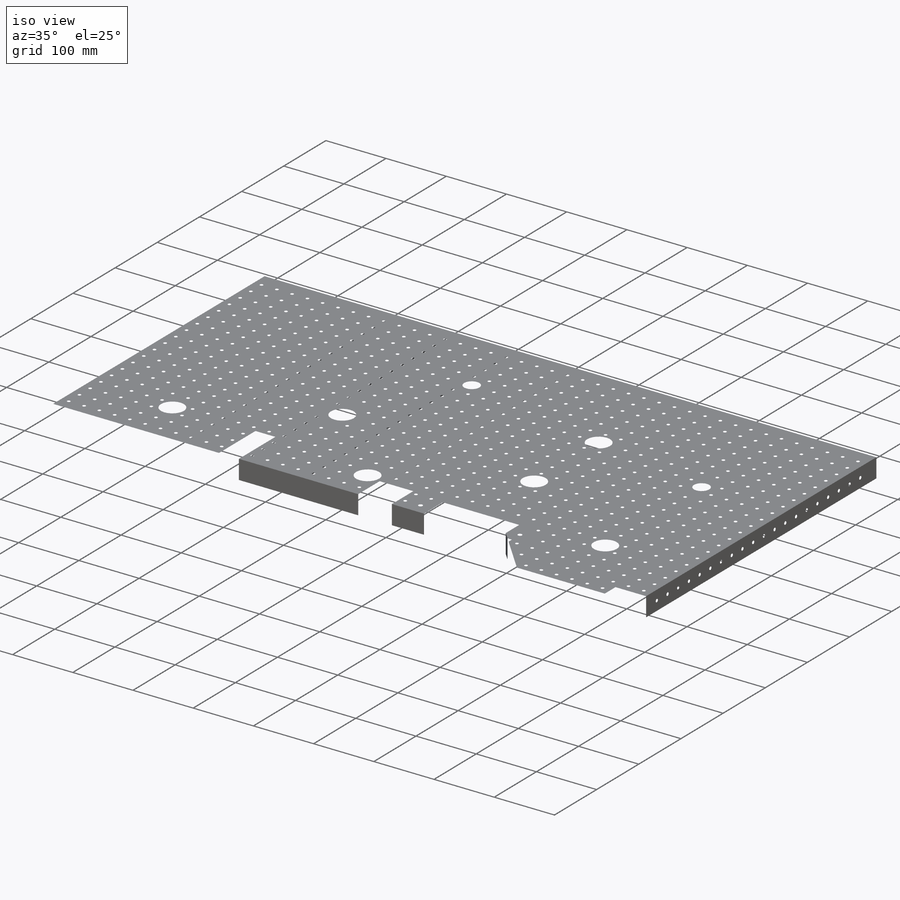
[diagram: iso view]
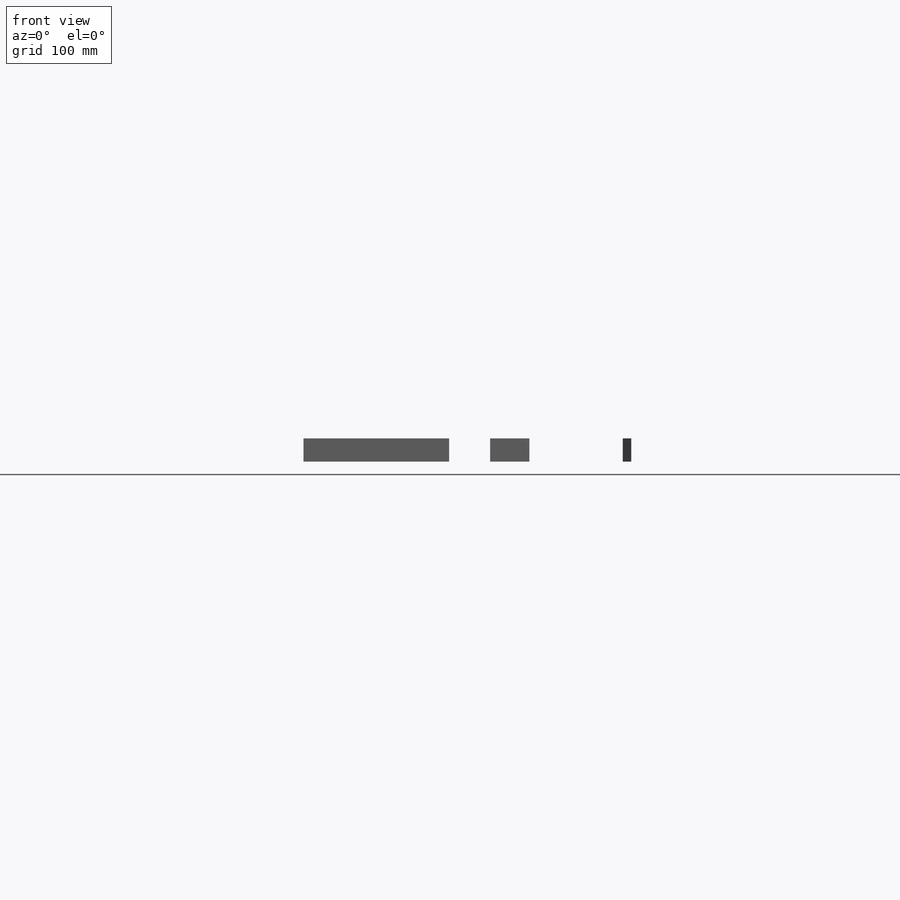
[diagram: front view]
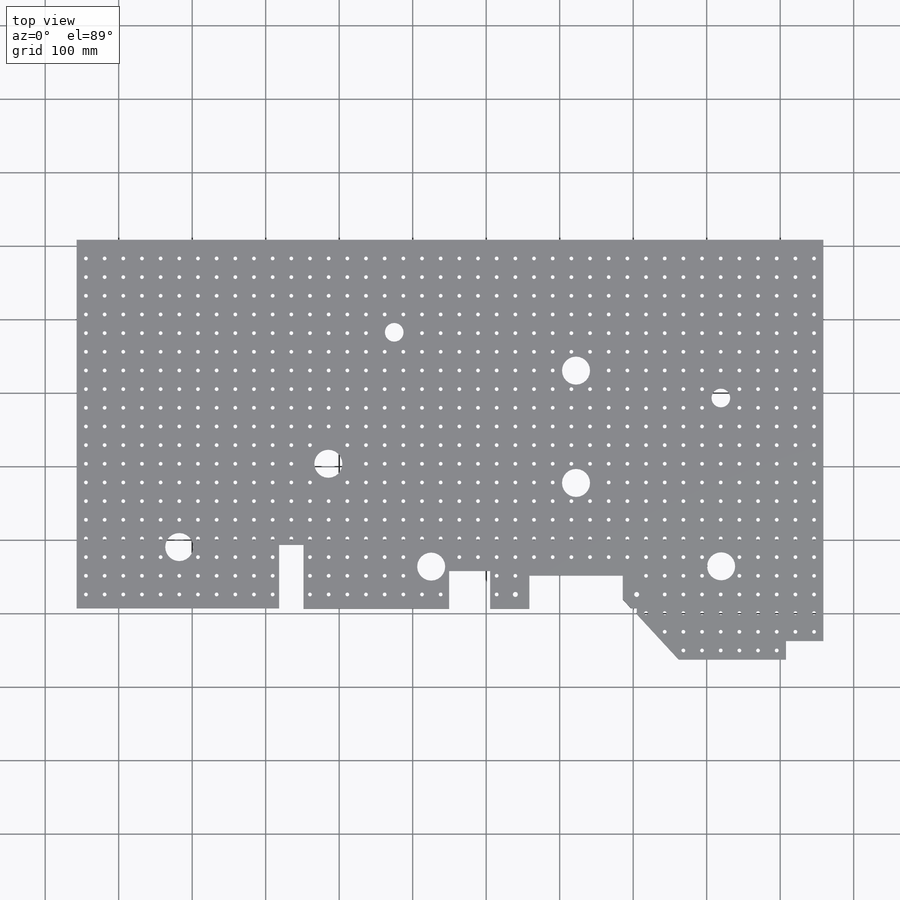
[diagram: top view]
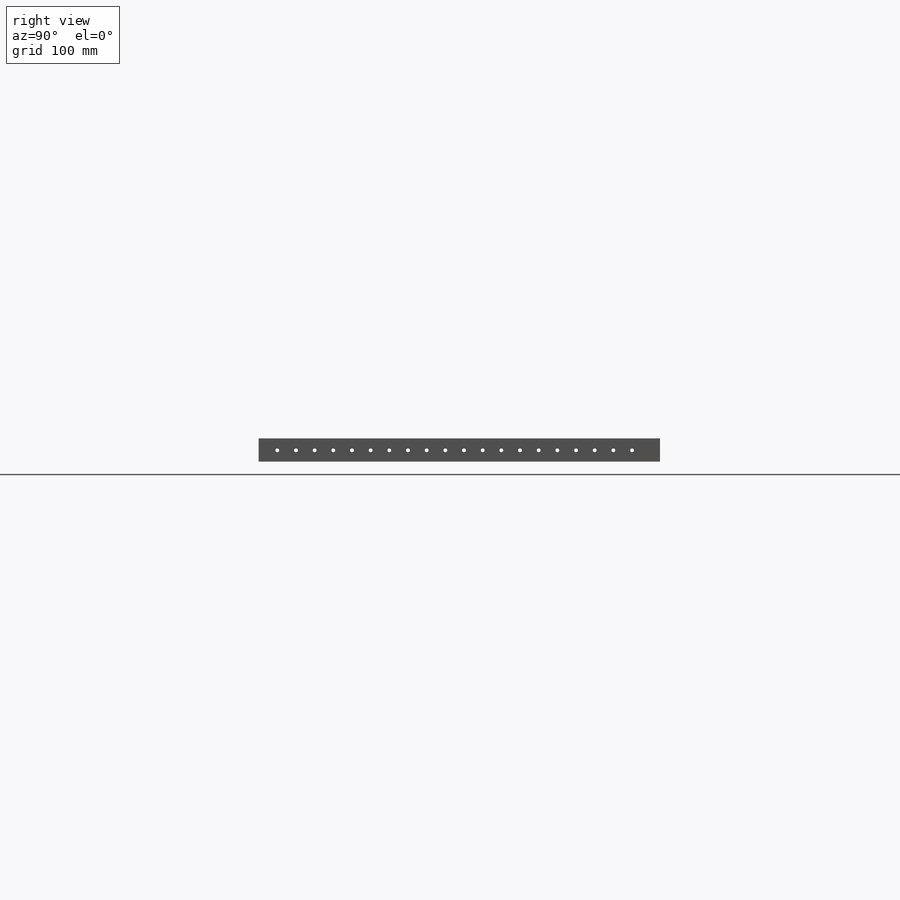
[diagram: right view]
SOLIDWORKS PART (.sldprt)
format: sldprt  version: not decoded by parser v0  size: 2,748,928 bytes
history: native  units: mm
features: sketch x27, cut_extrude x9, hole x6, extrude x4, thread x4, pattern_linear x4, material x1 (+11 scaffold rows collapsed)
feature tree (66):
  scaffold x11  (default folders/planes/origin — collapsed)
  material  "Material <not specified>"
  sketch  "Sketch1"  dims[D1=508.0mm]
  extrude  "Boss-Extrude1"  Depth=31.75mm
  sketch  "Sketch2"  dims[D1=273.05mm D2=158.75mm]
  cut_extrude  "Cut-Extrude1"  Depth=50.8mm
  sketch  "Sketch3"  dims[D1=215.9mm]
  extrude  "Boss-Extrude2"  Depth=63.5mm
  sketch  "Sketch4"
  cut_extrude  "Cut-Extrude2"  Depth=6.35mm
  sketch  "Sketch6"
  extrude  "Boss-Extrude3"  Depth=457.2mm
  hole  "1/4-20 Tapped Hole1"  Diameter=5.1054mm Depth=31.75mm
  sketch  "Sketch11"  dims[D1=12.7mm]
  sketch  "Sketch10"  dims[hole-wizard template sketch: 60 standard entries collapsed; hole parameters kept: c18.Thru Tap Drill Depth=31.75mm]
  thread  "Hole Thread1"  Diameter=6.35mm  [1 undecoded]
  sketch  "Sketch12"
  sketch  "Sketch13"
  extrude  "Boss-Extrude4"  Depth=63.5mm
  cut_extrude  "Cut-Extrude6"  [1 undecoded]
  cut_extrude  "Cut-Extrude9"  [1 undecoded]
  sketch  "Sketch2<2>"  dims[D1=76.2mm]
  hole  "1/4 Clearance Hole1"  Diameter=6.7564mm Depth=31.75mm
  sketch  "Sketch15"
  sketch  "Sketch14"  dims[hole-wizard template sketch: 60 standard entries collapsed; hole parameters kept: c18.Thru Hole Depth=31.75mm]
  hole  "1/4 Clearance Hole2"  Diameter=6.7564mm Depth=31.75mm
  sketch  "Sketch17"
  sketch  "Sketch16"  dims[hole-wizard template sketch: 60 standard entries collapsed; hole parameters kept: c18.Thru Hole Depth=31.75mm]
  sketch  "Sketch18"  dims[c1.D1=22.225mm c2.D1=333.44deg c3.D1=25.4mm c3.D2=101.6mm c4.D1=90.0deg c5.D1=304.8mm c6.D1=~63.434949deg c6.D2=44.45mm c6.D3=114.3mm]
  hole  "1/4-20 Tapped Hole3"  Diameter=5.1054mm Depth=31.75mm
  sketch  "Sketch22"  dims[D1=25.4mm D2=16.2941mm D3=16.2941mm]
  sketch  "Sketch21"  dims[hole-wizard template sketch: 50 standard entries collapsed; hole parameters above]
  thread  "Hole Thread3"  Diameter=25.4mm  [1 undecoded]
  pattern_linear  "LPattern4"  Count1=39 Count2=1 Spacing1=25.4mm Spacing2=16.2941mm
  hole  "1/4-20 Tapped Hole4"  Diameter=5.1054mm Depth=31.75mm
  sketch  "Sketch25"  dims[D1=50.8mm D2=16.2941mm]
  sketch  "Sketch24"  dims[hole-wizard template sketch: 50 standard entries collapsed; hole parameters above]
  thread  "Hole Thread4"  Diameter=25.4mm  [1 undecoded]
  pattern_linear  "LPattern5"  Count1=20 Count2=1 Spacing1=25.4mm Spacing2=16.2941mm
  hole  "1/4-20 Tapped Hole5"  Diameter=5.1054mm Depth=31.75mm
  sketch  "Sketch27"  dims[D1=31.75mm D2=16.2941mm]
  sketch  "Sketch26"  dims[hole-wizard template sketch: 50 standard entries collapsed; hole parameters above]
  thread  "Hole Thread5"  Diameter=25.4mm  [1 undecoded]
  pattern_linear  "LPattern6"  Count1=18 Count2=1 Spacing1=25.4mm Spacing2=16.2941mm
  sketch  "Sketch29"  dims[c1.D1=114.3mm c2.D1=90.0deg c3.D1=~184.531056mm c3.45=~36.548732deg c4.D1=45.0deg]
  sketch  "Sketch31"  dims[c1.D1=~19.740215mm c1.D2=12.7mm c2.D1=67.5deg]
  cut_extrude  "Cut-Extrude8"  [1 undecoded]
  pattern_linear  "LPattern3"  Count1=40 Count2=22 Spacing1=25.4mm Spacing2=25.4mm
  sketch  "Sketch30"  dims[c1.D3=5.1054mm c1.D1=67.31mm c1.D2=16.51mm c2.D3=16.51mm c2.D2=8.89mm]
  cut_extrude  "Cut-Extrude7"  [1 undecoded]
  sketch  "Sketch33"  dims[D1=19.05mm D2=12.7mm D3=12.7mm]
  cut_extrude  "Cut-Extrude11"  [1 undecoded]
  sketch  "Sketch34"  dims[D1=50.8mm D2=55.88mm D3=53.34mm]
  cut_extrude  "Cut-Extrude12"  [1 undecoded]
  sketch  "Sketch35"  dims[D1=50.8mm D2=25.4mm]
  cut_extrude  "Cut-Extrude13"  [1 undecoded]
decode coverage: 41 of 54 modeling features carry decoded parameters
note: ~ marks probable driven/reference dimensions
note: 11 parameter values undecoded
summary: no parameter record found for 7 features; Diameter pulled from absorbed wizard sketch
note: suppression state not decoded; provenance and decode notes live in map.json
